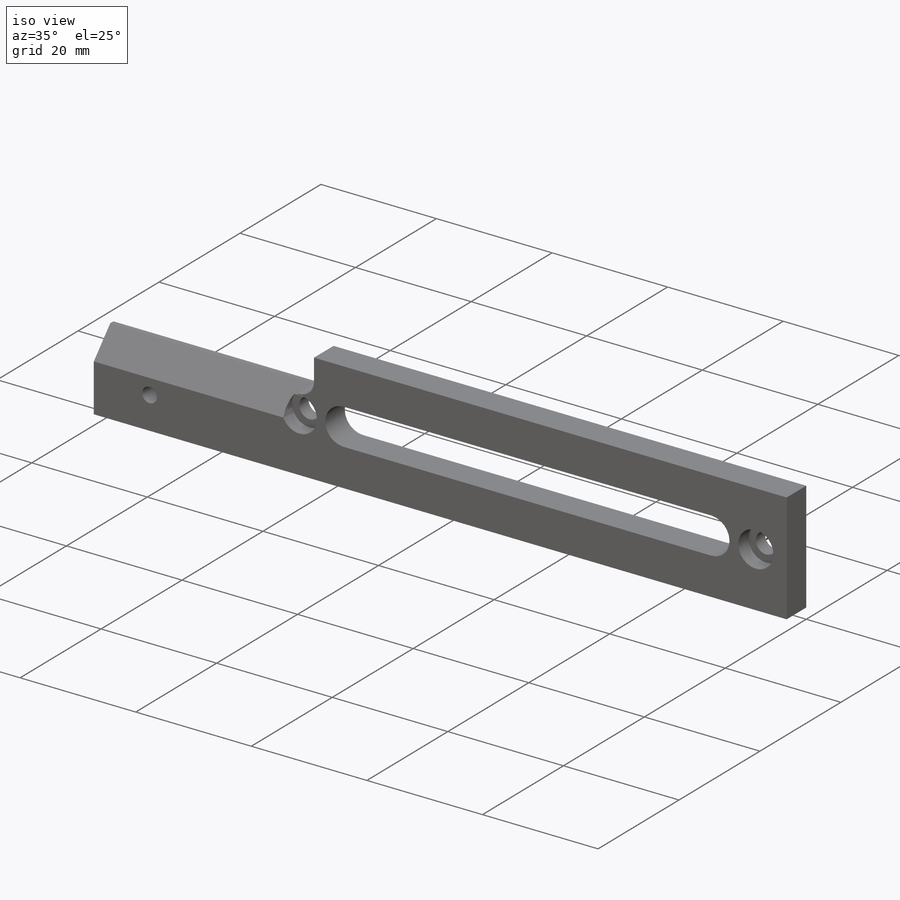
[diagram: iso view]
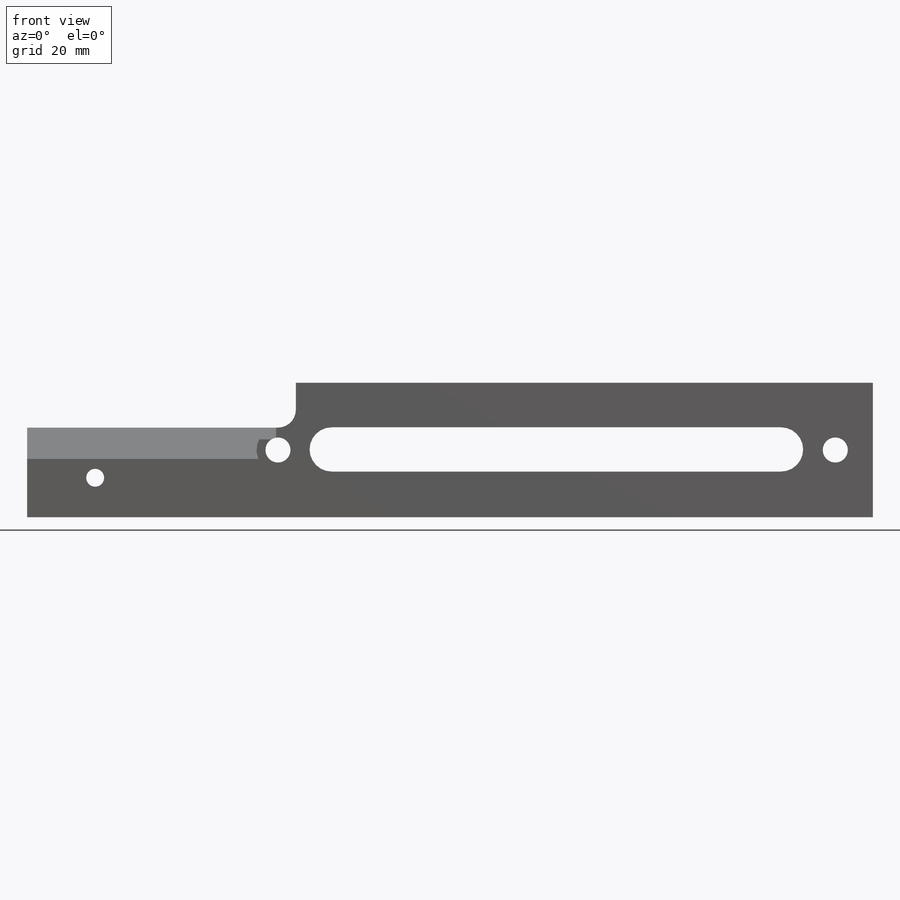
[diagram: front view]
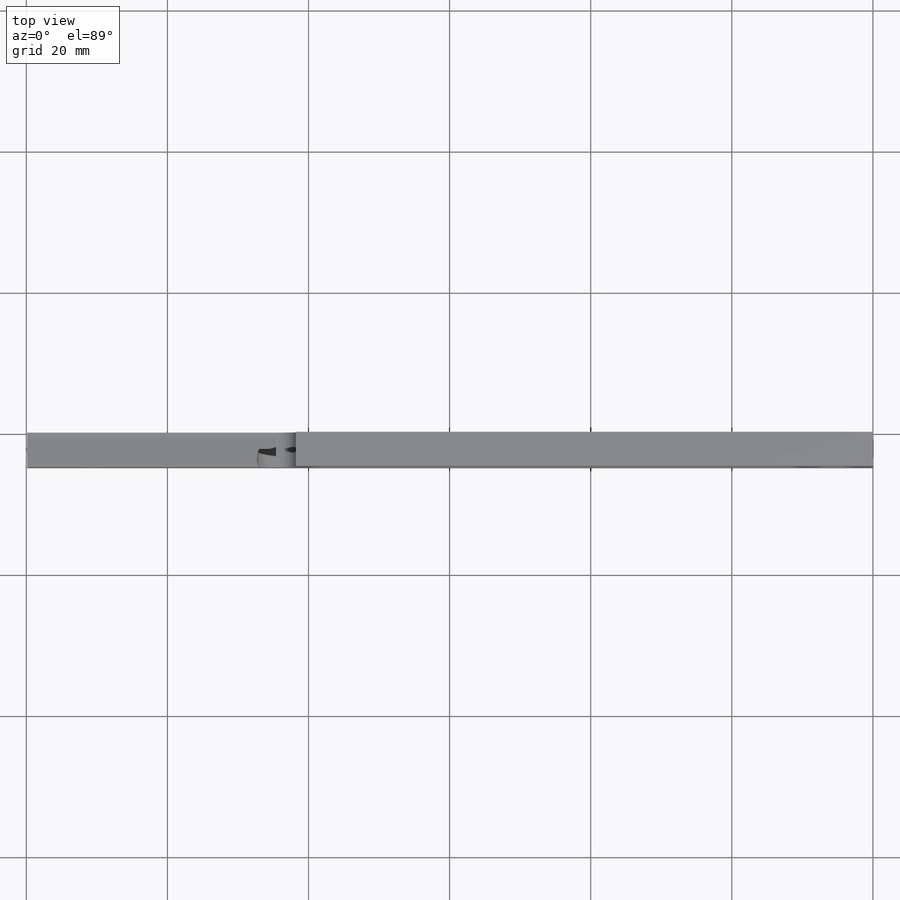
[diagram: top view]
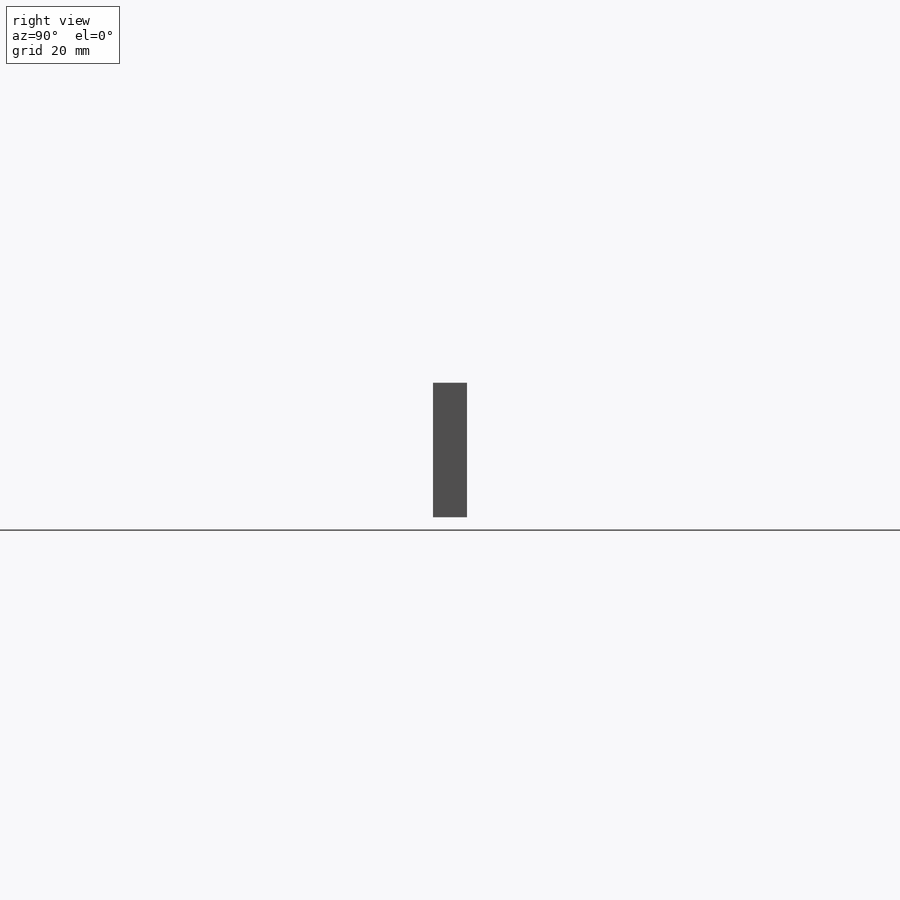
[diagram: right view]
SOLIDWORKS PART (.sldprt)
format: sldprt  version: not decoded by parser v0  size: 207,872 bytes
history: native  units: mm
features: sketch x5, cut_extrude x4, material x1, extrude x1 (+12 scaffold rows collapsed)
feature tree (23):
  scaffold x12  (default folders/planes/origin — collapsed)
  material  "Material <not specified>"
  sketch  "Sketch1"  dims[D5=2.54mm D1=19.05mm D2=119.888mm D3=81.788mm D4=12.7mm]
  extrude  "Boss-Extrude1"  Depth=4.826mm
  sketch  "Sketch2"
  cut_extrude  "Cut-Extrude1"  Depth=35.306mm
  sketch  "Sketch3"  dims[c1.D1=6.096mm c1.D2=6.096mm c1.D3=6.096mm c1.D4=6.096mm c2.D2=5.334mm c2.D4=35.56mm]
  cut_extrude  "Cut-Extrude2"  Depth=2.54mm
  sketch  "Sketch4"  dims[c1.D1=3.556mm c1.D2=3.556mm c1.D3=2.54mm c1.D4=2.54mm c1.D5=2.54mm c2.D4=9.652mm c2.D5=5.588mm]
  cut_extrude  "Cut-Extrude3"  [1 undecoded]
  sketch  "Sketch5"  dims[D1=6.2738mm D2=63.6778mm D3=7.62mm]
  cut_extrude  "Cut-Extrude4"  [1 undecoded]
decode coverage: 7 of 10 modeling features carry decoded parameters
note: 2 parameter values undecoded
note: suppression state not decoded; provenance and decode notes live in map.json
